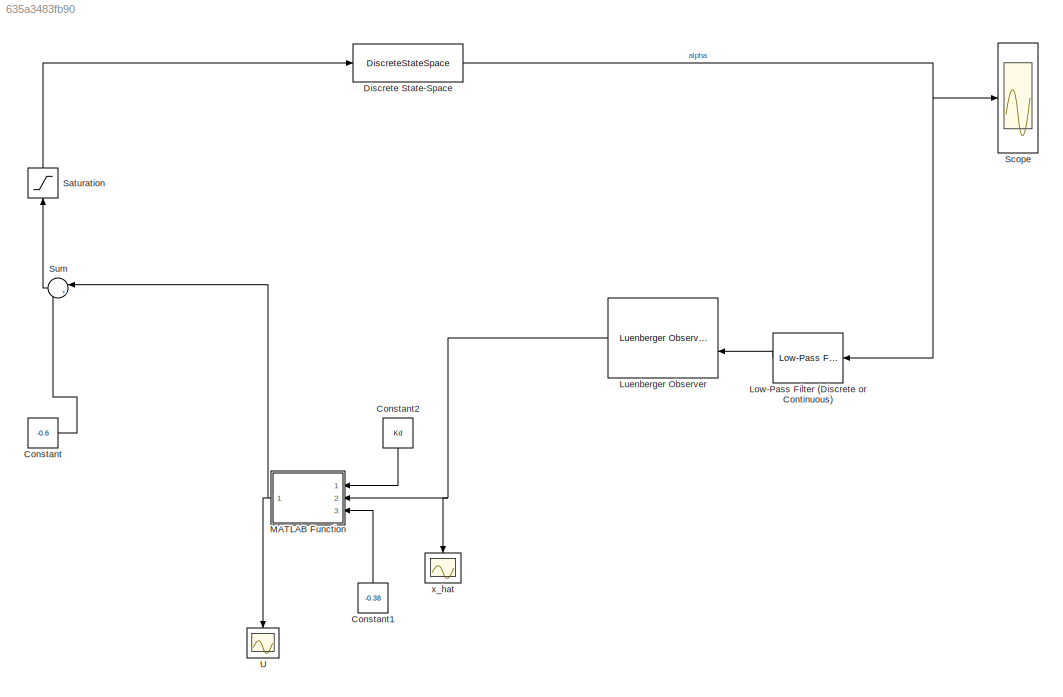
MODEL slx_635a3483fb90
KIND model
CONFIG AbsTol = auto
CONFIG EnableMultiTasking = off
CONFIG FixedStep = auto
CONFIG InitFcn = hwinit
CONFIG MaxStep = auto
CONFIG MinStep = auto
CONFIG RelTol = 1e-3
CONFIG SampleTimeConstraint = Unconstrained
CONFIG SolverName = ode45
CONFIG StartTime = 0.0
CONFIG StopTime = Tsim
BLOCK [Constant] Constant
  Value = -0.6
BLOCK [Constant] Constant1
  NameLocation = right
  Value = -0.38
BLOCK [Constant] Constant2
  LockScale = on
  NameLocation = left
  Value = Kd
BLOCK [DiscreteStateSpace] Discrete State-Space
  A = sysd.A
  B = sysd.B
  C = sysd.C
  D = sysd.D
  SampleTime = -1
BLOCK [Reference] Low-Pass Filter (Discrete or Continuous)  REF=eeGeneralControl/Low-Pass Filter
(Discrete or Continuous)
  NameLocation = top
  Ports = [1, 1]
  SourceBlock = eeGeneralControl/Low-Pass Filter\n(Discrete or Continuous)
  SourceProductBaseCode = PS
  SourceType = Low-Pass Filter (Discrete or Continuous)
BLOCK [Reference] Luenberger Observer  REF=eeLuenbergerObserver/Luenberger Observer
  NameLocation = top
  Ports = [2, 1]
  SourceBlock = eeLuenbergerObserver/Luenberger Observer
  SourceProductBaseCode = PS
  SourceType = Luenberger Observer
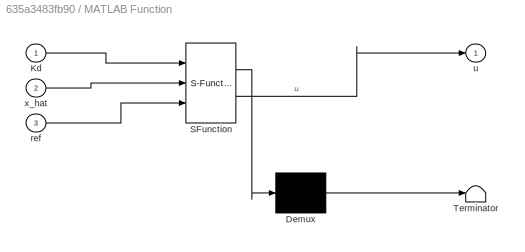
BLOCK [SubSystem] MATLAB Function
  ErrorFcn = Stateflow.Translate.translate
  NameLocation = top
  PermitHierarchicalResolution = ExplicitOnly
  Ports = [3, 1]
  RequestExecContextInheritance = off
  SFBlockType = MATLAB Function
  TreatAsAtomicUnit = on
BLOCK [Demux] MATLAB Function/ Demux 
  Outputs = 1
  Ports = [1, 1]
BLOCK [S-Function] MATLAB Function/ SFunction 
  EnableBusSupport = on
  FunctionName = sf_sfun
  PortCounts = [3 2]
  Ports = [3, 2]
  SFcnIsStateOwnerBlock = off
  SFunctionDeploymentMode = off
  Tag = Stateflow S-Function 2
BLOCK [Terminator] MATLAB Function/ Terminator 
BLOCK [Inport] MATLAB Function/Kd
BLOCK [Inport] MATLAB Function/ref
  Port = 3
BLOCK [Outport] MATLAB Function/u
BLOCK [Inport] MATLAB Function/x_hat
  Port = 2
BLOCK [Saturate] Saturation
  LowerLimit = -1
  NameLocation = right
  UpperLimit = 0
BLOCK [Scope] Scope
  Floating = off
  NumInputPorts = 1
  Ports = [1]
  ScopeSpecificationString = Simulink.scopes.TimeScopeBlockCfg('CurrentConfiguration', extmgr.ConfigurationSet(extmgr.Configuration('Core','General UI',true),extmgr.Configuration('Core','Source UI',true),extmgr.Configuration('Sources','WiredSimulink',true,'DataLogging',true,'DataLoggingVariableName','y','DataLoggingSaveFormat','StructureWithTime','DataLoggingDecimation','1','DataLoggingDecimateData',true),extmgr.Configuration...<+1628ch>
BLOCK [Sum] Sum
  Inputs = |++
  NameLocation = top
  Ports = [2, 1]
BLOCK [Scope] U
  Floating = off
  NameLocation = left
  NumInputPorts = 1
  Ports = [1]
  ScopeSpecificationString = Simulink.scopes.TimeScopeBlockCfg('CurrentConfiguration', extmgr.ConfigurationSet(extmgr.Configuration('Core','General UI',true),extmgr.Configuration('Core','Source UI',true),extmgr.Configuration('Sources','WiredSimulink',true,'DataLoggingVariableName','ScopeData1'),extmgr.Configuration('Visuals','Time Domain',true,'SerializedDisplays',{struct('MinYLimReal','-0.31994','MaxYLimReal','0.54568','YLab...<+1445ch>
BLOCK [Scope] x_hat
  Floating = off
  NameLocation = left
  NumInputPorts = 1
  Ports = [1]
  ScopeSpecificationString = Simulink.scopes.TimeScopeBlockCfg('CurrentConfiguration', extmgr.ConfigurationSet(extmgr.Configuration('Core','General UI',true),extmgr.Configuration('Core','Source UI',true),extmgr.Configuration('Sources','WiredSimulink',true,'DataLoggingVariableName','ScopeData2'),extmgr.Configuration('Visuals','Time Domain',true,'SerializedDisplays',{struct('MinYLimReal','-2.5365','MaxYLimReal','0.95793','YLabe...<+1614ch>
LINE Constant1:1 -> MATLAB Function:3
LINE Constant2:1 -> MATLAB Function:1
LINE Constant:1 -> Sum:2
NET Discrete State-Space:1 -> Low-Pass Filter (Discrete or Continuous):1, Scope:1
LINE Low-Pass Filter (Discrete or Continuous):1 -> Luenberger Observer:2
NET Luenberger Observer:1 -> MATLAB Function:2, x_hat:1
NET MATLAB Function:1 -> Sum:1, U:1
LINE Saturation:1 -> Discrete State-Space:1
LINE Sum:1 -> Saturation:1
note: NET lines group one-source signal fan-out (src -> all destinations, sorted); 1:1 wires keep LINE
CHART MATLAB Function states=1 transitions=1
  STATE_LABEL 'eML_blk_kernel()'
  STATE_LABEL "SCRIPT:\nfunction u = fcn(Kd, x_hat, ref)\n    x_ref = [ref; 0];\n    error = x_hat-x_ref;\n    u = (-Kd'*error);\nend\n"
CHART  states=0 transitions=0
